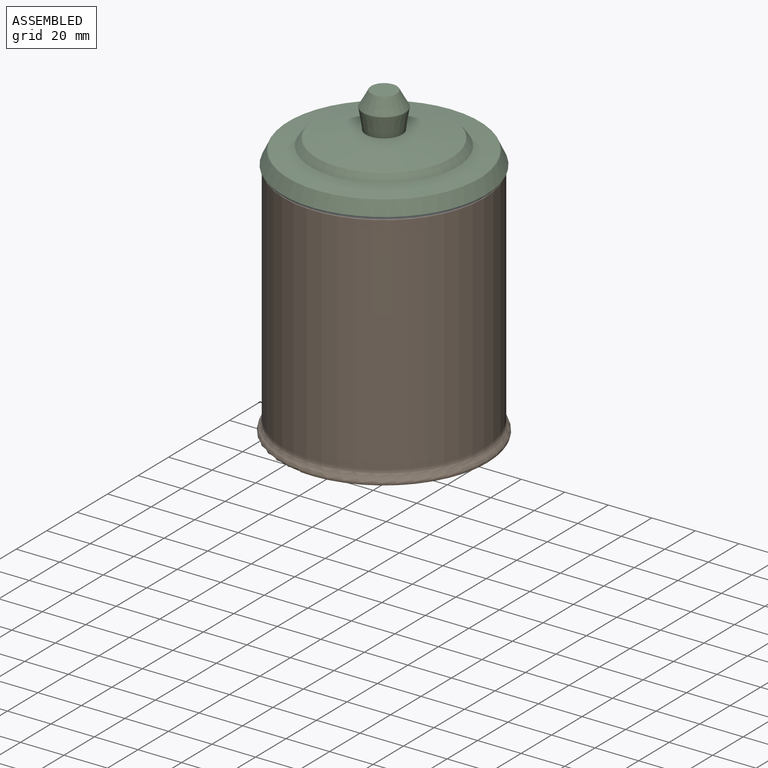
[diagram: assembled view]
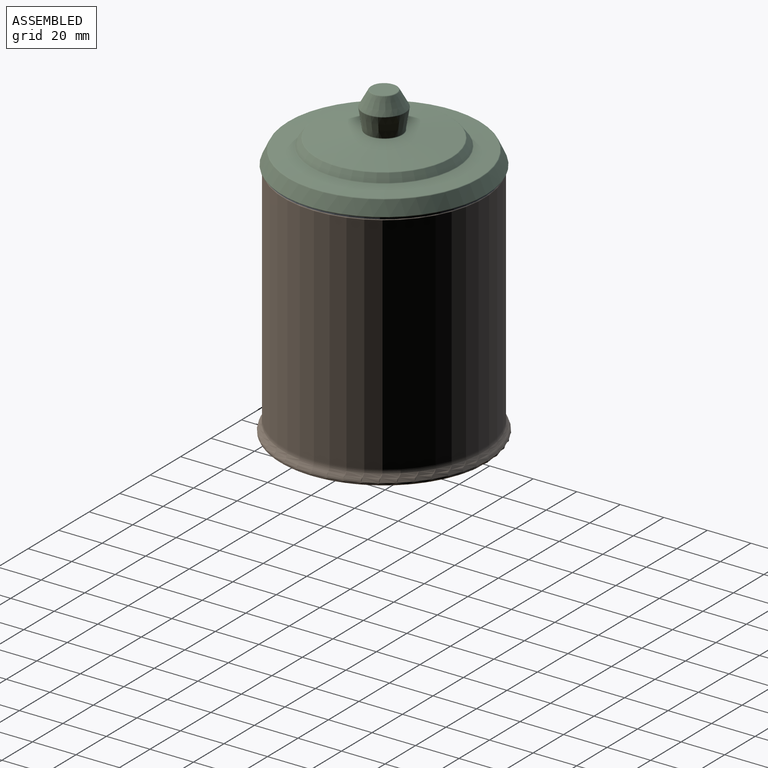
[diagram: assembled view, second angle]
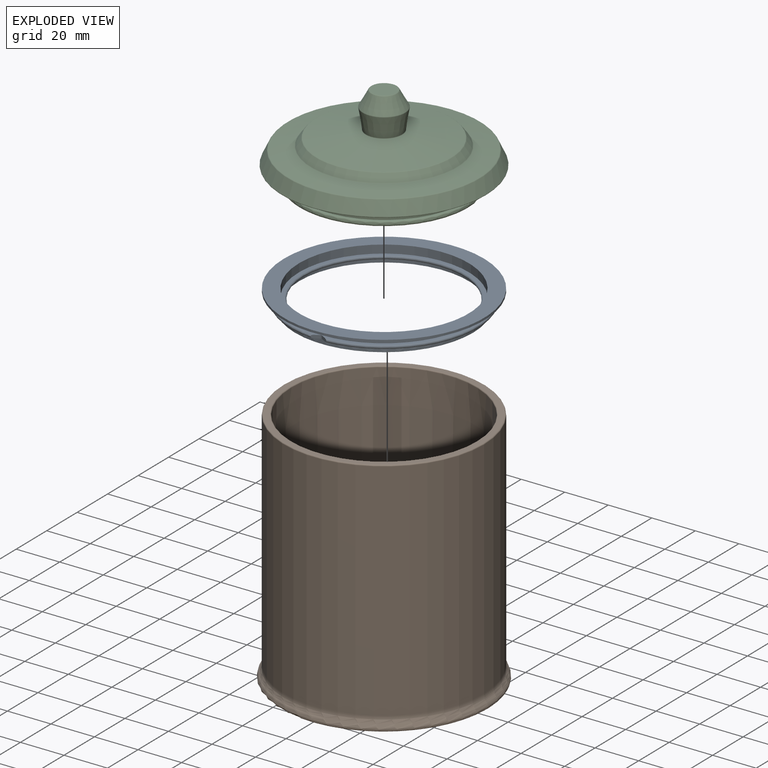
[diagram: exploded view]
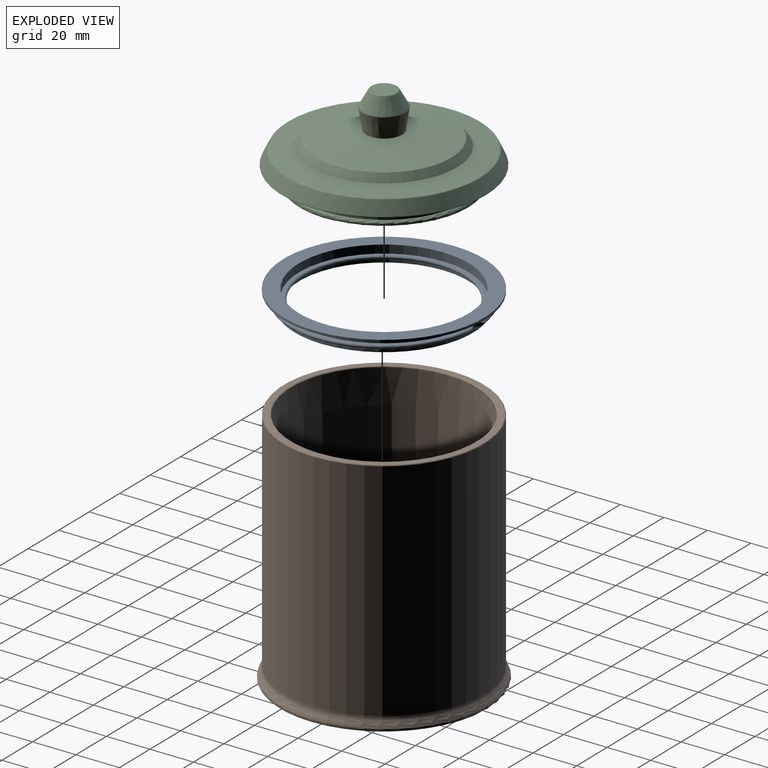
[diagram: exploded view, second angle]
ASSEMBLY  parts=3 mates=5
PART A: 21 faces, bbox 93.6x93.5x7.5 mm
  f0: cylinder r=41mm len=82mm, axis (0,0,-1), area 566.7mm2, adj f2,f20
  f1: cylinder r=39mm len=78mm, axis (0,0,-1), area 539.1mm2, adj f12,f20
  f2: plane 85x84.86mm, normal (0,0,-1), area 386.1mm2, adj f0,f4,f5,f14,f15,f16,f17,f18
  f3: plane 85x84.86mm, normal (0,0,1), area 386.1mm2, adj f4,f5,f6,f14,f15,f16,f17,f18
  f4: torus R=42.5mm, axis (0,0,-1), area 303mm2, adj f2,f3,f14,f17
  f5: torus R=42.5mm, axis (0,0,-1), area 303mm2, adj f2,f3,f15,f16
  f6: cylinder r=41mm len=82mm, axis (0,0,-1), area 708.4mm2, adj f3,f7
  f7: plane 92x92mm, normal (0,0,-1), area 1366.6mm2, adj f6,f8
  f8: cylinder r=46mm len=92mm, axis (0,0,-1), area 289mm2, adj f7,f9
  f9: plane 92x92mm, normal (0,0,1), area 1869.2mm2, adj f8,f10
  f10: cylinder r=39mm len=78mm, axis (0,0,-1), area 918.9mm2, adj f9,f11
  f11: plane 78x78mm, normal (0,0,1), area 360.5mm2, adj f10,f13
  f12: plane 78x78mm, normal (0,0,-1), area 360.5mm2, adj f1,f13
  f13: torus R=37.5mm, axis (0,0,1), area 548.1mm2, adj f11,f12
  f14: plane 3.13x1.81mm, normal (0.5,0.87,0), area 5mm2, adj f2,f3,f4,f19
  f15: plane 3.13x1.81mm, normal (-0.5,0.87,0), area 5mm2, adj f2,f3,f5,f19
  f16: plane 3.13x1.81mm, normal (-0.5,-0.87,0), area 5mm2, adj f2,f3,f5,f18
  f17: plane 3.13x1.81mm, normal (0.5,-0.87,0), area 5mm2, adj f2,f3,f4,f18
  f18: cylinder r=1mm len=1.5mm, axis (0,0,-1), area 1.6mm2, adj f2,f3,f16,f17
  f19: cylinder r=1mm len=1.5mm, axis (0,0,-1), area 1.6mm2, adj f2,f3,f14,f15
  f20: plane 82x82mm, normal (0,0,-1), area 502.7mm2, adj f0,f1
PART B: 15 faces, bbox 103.9x103.9x110 mm
  f0: torus R=33mm, axis (0,0,1), area 2974.9mm2, adj f1,f13
  f1: plane 66x66mm, normal (0,0,1), area 3421.4mm2, adj f0
  f2: plane 74x74mm, normal (0,0,-1), area 4300.8mm2, adj f3
  f3: torus R=37mm, axis (0,0,1), area 371.5mm2, adj f2,f4
  f4: torus R=39mm, axis (0,0,1), area 378.6mm2, adj f3,f5
  f5: plane 93.73x93.73mm, normal (0,0,-1), area 2121.8mm2, adj f4,f14
  f6: torus R=43.21mm, axis (0,0,1), area 585.2mm2, adj f7,f14
  f7: torus R=50.06mm, axis (0,0,1), area 499.4mm2, adj f6,f8
  f8: torus R=52mm, axis (0,0,1), area 433.7mm2, adj f7,f9
  f9: cylinder r=46mm len=103.5mm, axis (0,0,1), area 29914.2mm2, adj f8,f10
  f10: torus R=45.5mm, axis (0,0,1), area 226.1mm2, adj f9,f11
  f11: plane 91x91mm, normal (0,0,1), area 697.2mm2, adj f10,f12
  f12: torus R=42.99mm, axis (0,0,1), area 208.5mm2, adj f11,f13
  f13: cone r=42.49mm half-angle=0.9deg, axis (0,0,1), area 24563.5mm2, adj f0,f12
  f14: torus R=46.87mm, axis (0,0,-1), area 549.1mm2, adj f5,f6
PART C: 25 faces, bbox 101.4x101.4x39 mm
  f0: torus R=9.23mm, axis (0,0,1), area 20.3mm2, adj f1,f24
  f1: cone r=9.67mm half-angle=29.1deg, axis (0,0,-1), area 375.8mm2, adj f0,f2
  f2: torus R=5.51mm, axis (0,0,1), area 19.2mm2, adj f1,f3
  f3: plane 11.01x11.01mm, normal (0,0,1), area 95.2mm2, adj f2
  f4: sphere r=63.62mm, area 3651.6mm2, adj f5
  f5: torus R=31.3mm, axis (0,0,1), area 632.5mm2, adj f4,f6
  f6: cone r=34.3mm half-angle=2deg, axis (0,0,-1), area 1055.9mm2, adj f5,f7
  f7: torus R=35.47mm, axis (0,0,1), area 336.2mm2, adj f6,f8
  f8: plane 76x76mm, normal (0,0,-1), area 584.9mm2, adj f7,f9
  f9: torus R=38mm, axis (0,0,1), area 381.3mm2, adj f8,f10
  f10: cylinder r=39mm len=78mm, axis (0,0,1), area 49mm2, adj f9,f11
  f11: torus R=38mm, axis (0,0,1), area 381.3mm2, adj f10,f12
  f12: plane 76x76mm, normal (0,0,1), area 118.6mm2, adj f11,f13
  f13: cylinder r=37.5mm len=75mm, axis (0,0,1), area 1237mm2, adj f12,f14
  f14: plane 93.22x93.22mm, normal (0,0,-1), area 2406.5mm2, adj f13,f15
  f15: torus R=46.61mm, axis (0,0,1), area 147.5mm2, adj f14,f16
  f16: cone r=44.09mm half-angle=25deg, axis (0,0,-1), area 1857.6mm2, adj f15,f17
  f17: torus R=43.63mm, axis (0,0,1), area 136.7mm2, adj f16,f18
  f18: cone r=43.7mm half-angle=81.8deg, axis (0,0,-1), area 2446.8mm2, adj f17,f19
  f19: torus R=33.82mm, axis (0,0,1), area 84.3mm2, adj f18,f20
  f20: cone r=33.42mm half-angle=36deg, axis (0,0,-1), area 791.6mm2, adj f19,f21
  f21: torus R=30.72mm, axis (0,0,1), area 77.8mm2, adj f20,f22
  f22: cone r=30.79mm half-angle=81.8deg, axis (0,0,-1), area 2782mm2, adj f21,f23
  f23: torus R=8.5mm, axis (0,0,1), area 20.7mm2, adj f22,f24
  f24: cone r=9.72mm half-angle=9.1deg, axis (0,0,1), area 525.1mm2, adj f0,f23
PLACE A t=(-76.81,-20.25,97.71)mm
PLACE B t=(-76.81,-20.25,-0.79)mm
PLACE C rot(axis=(0,0,1),90deg) t=(-76.81,-20.25,102.76)mm
MATE planar C.f17 <-> B.f0  axis (0,0,-1) through (-76.81,-20.25,110.21)mm
MATE parallel C.f17 <-> B.f0  axis (0,0,-1) through (-76.81,-20.25,110.21)mm
MATE planar C.f17 <-> A.f0  axis (0,0,-1) through (-76.81,-20.25,110.21)mm
MATE cylindrical B.f9 <-> C.f10  axis (0,0,1) through (-76.81,-20.25,109.21)mm
MATE cylindrical A.f0 <-> C.f10  axis (0,0,1) through (-76.81,-20.25,106.46)mm
